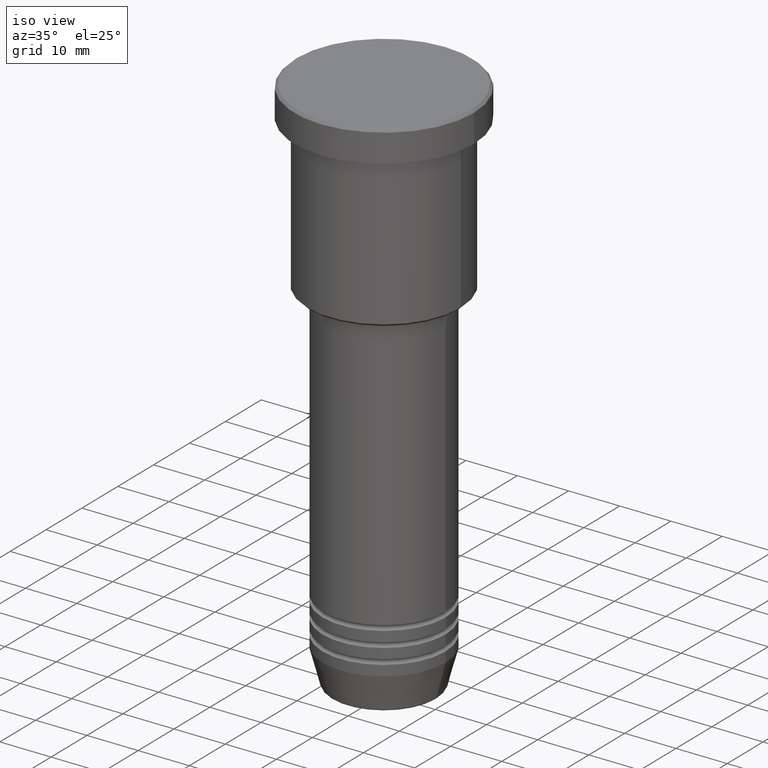
[diagram: clean part render]
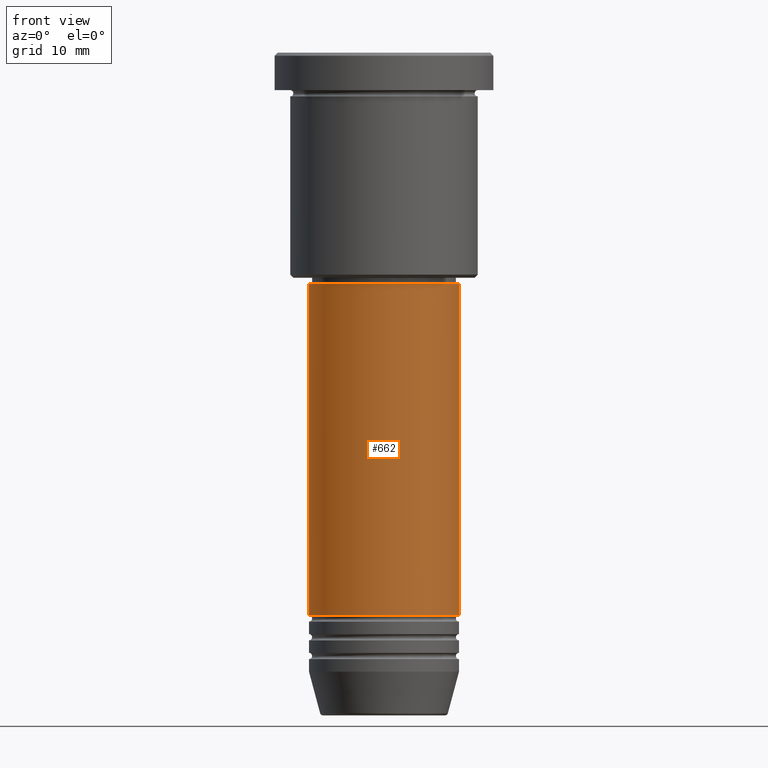
[diagram: tour spotlight — one face highlighted and labeled with its STEP entity id]
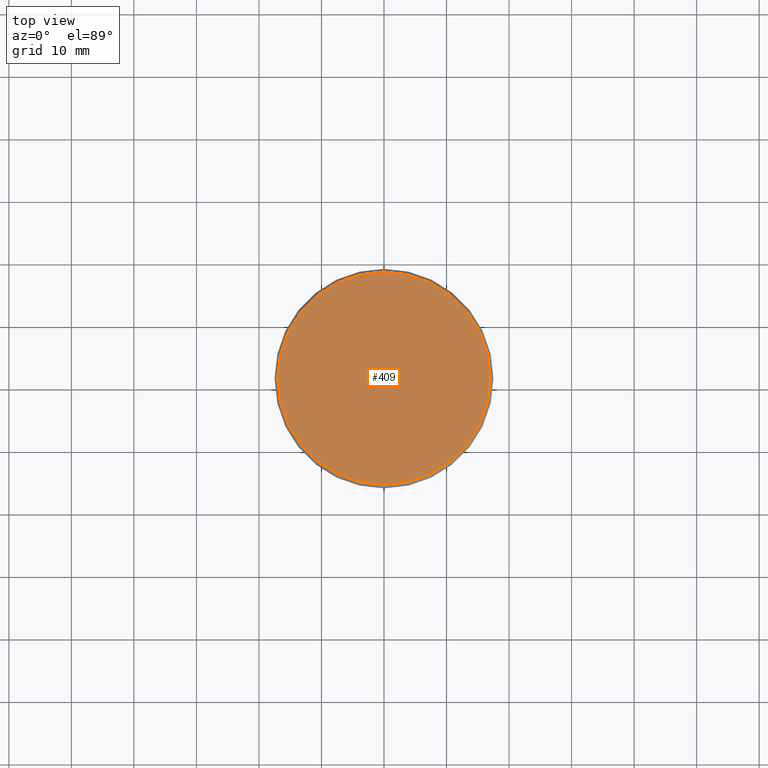
[diagram: tour spotlight — one face highlighted and labeled with its STEP entity id]
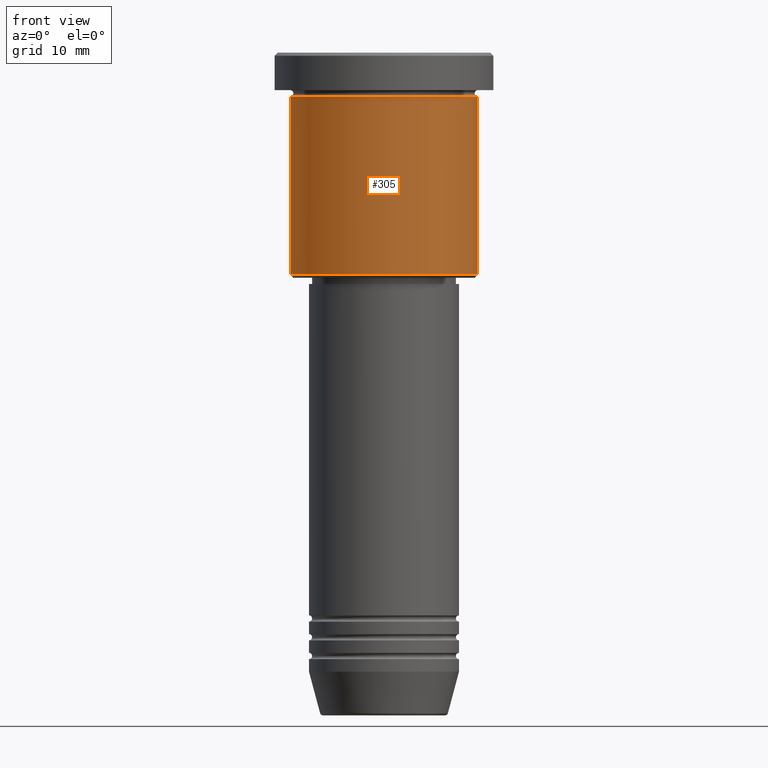
[diagram: tour spotlight — one face highlighted and labeled with its STEP entity id]
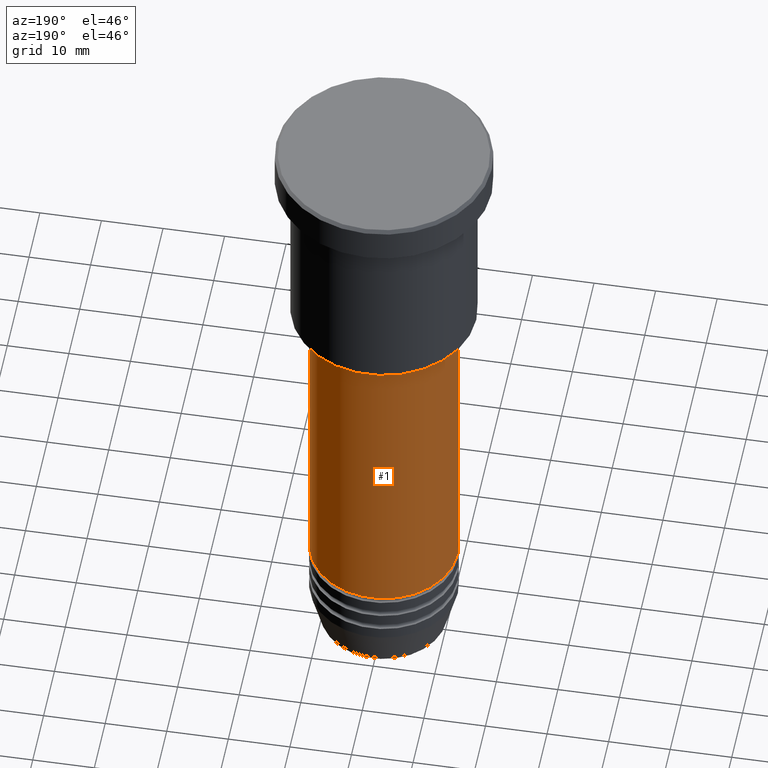
[diagram: tour spotlight — one face highlighted and labeled with its STEP entity id]
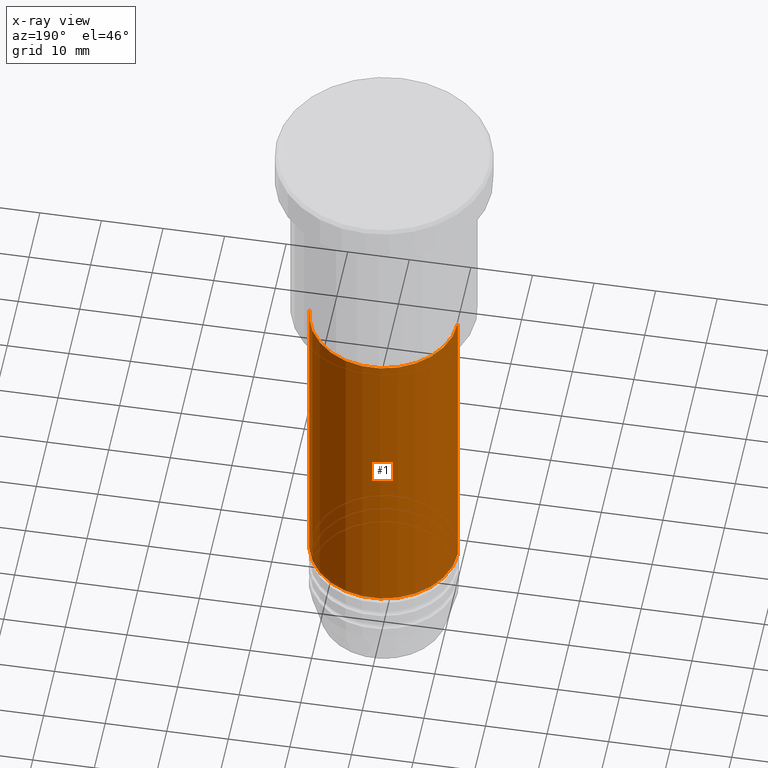
[diagram: x-ray of the same camera — body ghosted, this tour face saturated]
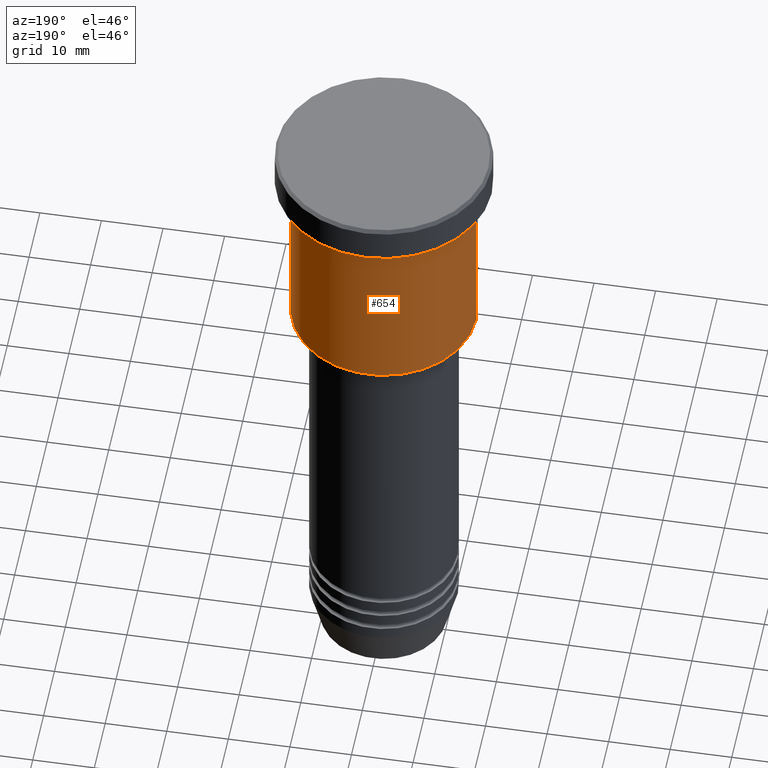
[diagram: tour spotlight — one face highlighted and labeled with its STEP entity id]
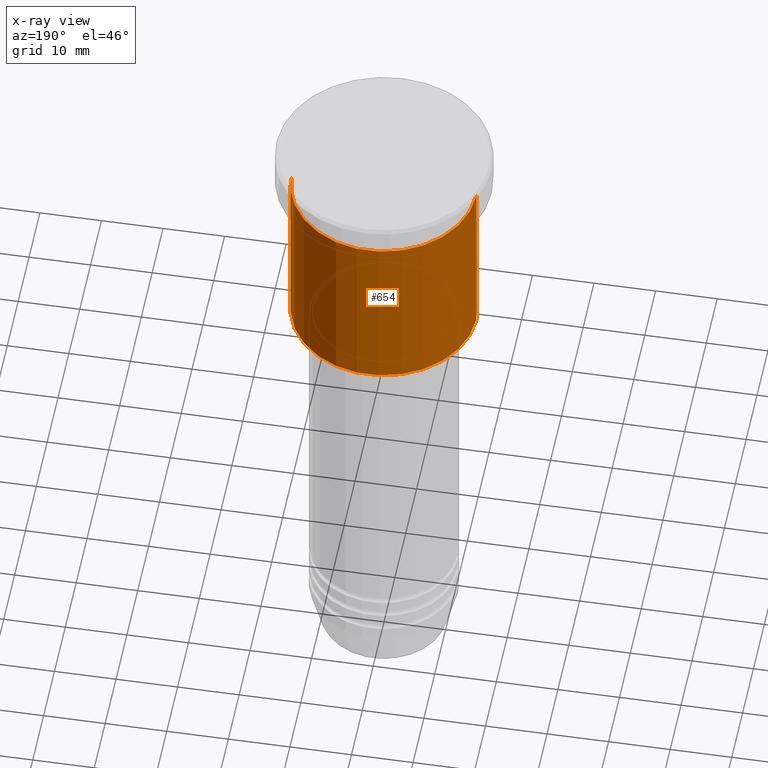
[diagram: x-ray of the same camera — body ghosted, this tour face saturated]
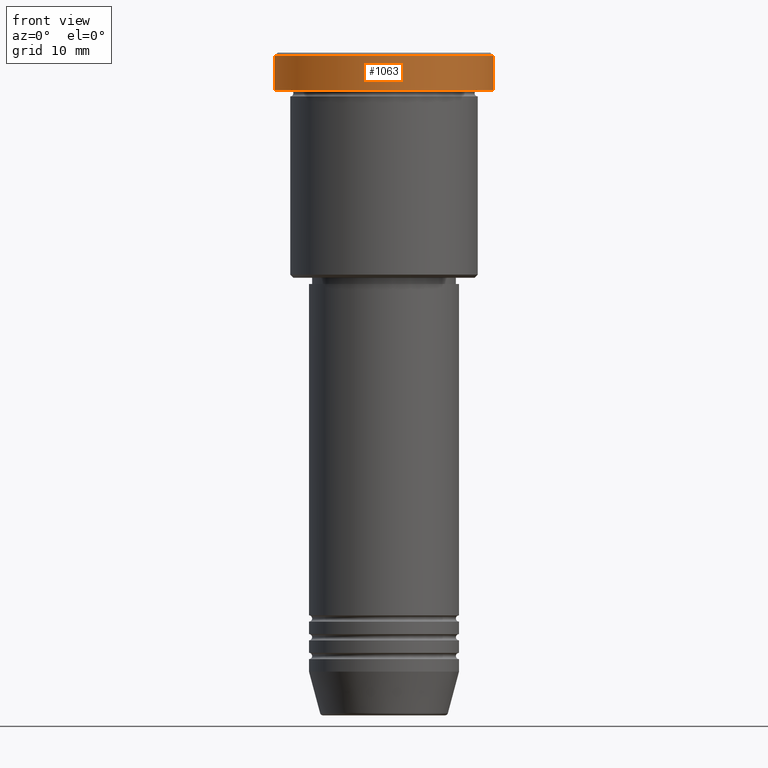
[diagram: tour spotlight — one face highlighted and labeled with its STEP entity id]
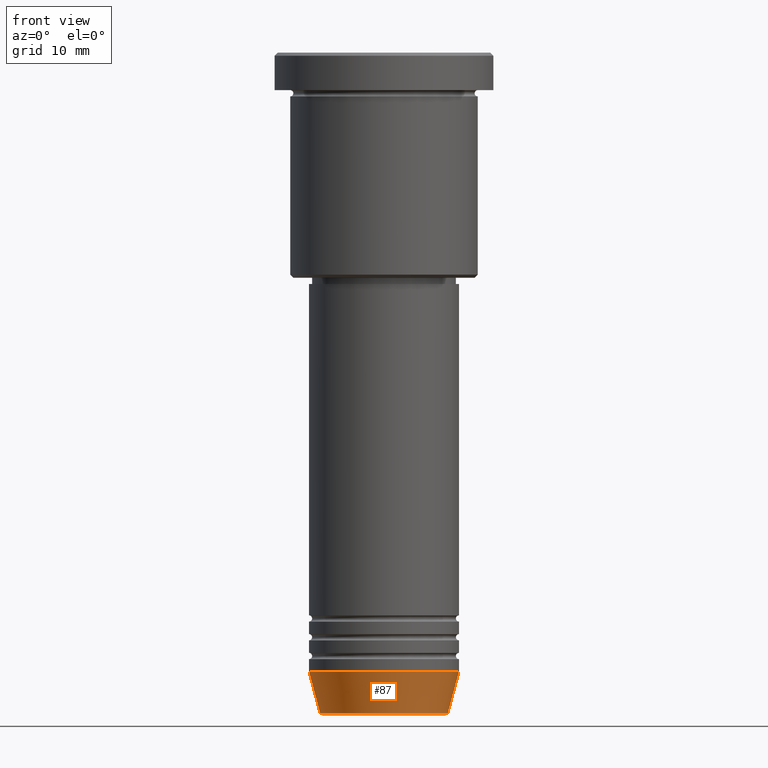
[diagram: tour spotlight — one face highlighted and labeled with its STEP entity id]
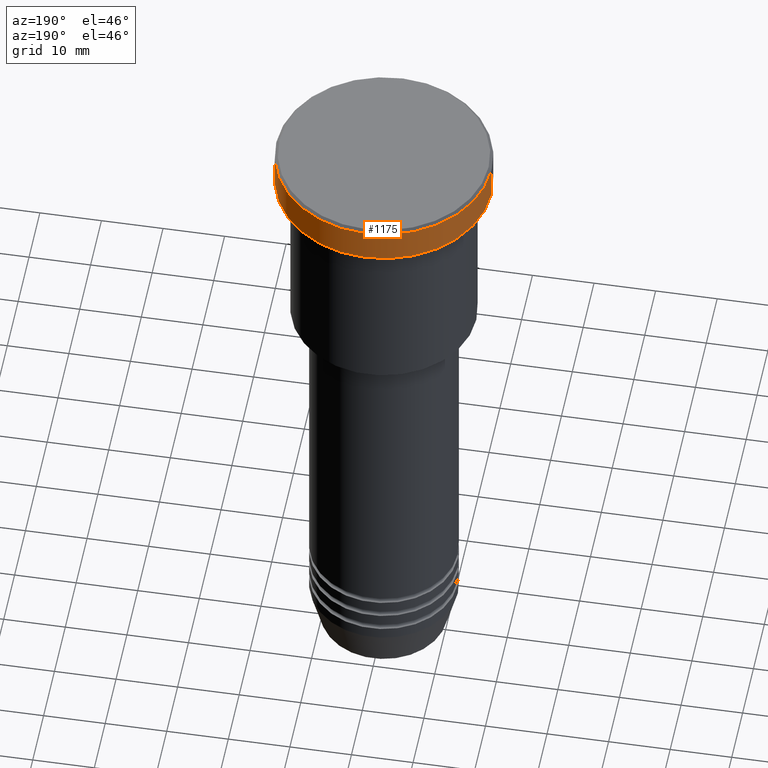
[diagram: tour spotlight — one face highlighted and labeled with its STEP entity id]
A machine part: a face-by-face anatomy tour. The part has 43 B-rep faces; the first image is the clean iso view, then the 8 largest visible faces are spotlighted one at a time (largest first), each with its STEP entity span.

Face 1 — front view, entity #662. In plain terms, the highlighted cylindrical surface (partial cylindrical patch) has radius 12 mm, axis along (-0, -0, 1).
Definition (entity closure, byte-faithful):
#74 = VECTOR ( 'NONE', #275, 1000.000000000000000 ) ;
#88 = DIRECTION ( 'NONE',  ( 1.000000000000000000, 0.000000000000000000, 0.000000000000000000 ) ) ;
#106 = CYLINDRICAL_SURFACE ( 'NONE', #253, 12.00000000000000000 ) ;
#139 = AXIS2_PLACEMENT_3D ( 'NONE', #683, #1139, #651 ) ;
#234 = VERTEX_POINT ( 'NONE', #669 ) ;
#237 = AXIS2_PLACEMENT_3D ( 'NONE', #742, #645, #88 ) ;
#253 = AXIS2_PLACEMENT_3D ( 'NONE', #739, #1104, #454 ) ;
#275 = DIRECTION ( 'NONE',  ( -0.000000000000000000, -0.000000000000000000, 1.000000000000000000 ) ) ;
#334 = CARTESIAN_POINT ( 'NONE',  ( 12.00000000000000000, 0.000000000000000000, 0.000000000000000000 ) ) ;
#342 = EDGE_CURVE ( 'NONE', #676, #744, #1149, .T. ) ;
#347 = CIRCLE ( 'NONE', #139, 12.00000000000000000 ) ;
#369 = CARTESIAN_POINT ( 'NONE',  ( 12.00000000000000000, 0.000000000000000000, -37.00000000000000000 ) ) ;
#371 = ORIENTED_EDGE ( 'NONE', *, *, #930, .F. ) ;
#381 = ORIENTED_EDGE ( 'NONE', *, *, #342, .T. ) ;
#401 = EDGE_LOOP ( 'NONE', ( #540, #623, #381, #371 ) ) ;
#454 = DIRECTION ( 'NONE',  ( 1.000000000000000000, 0.000000000000000000, 0.000000000000000000 ) ) ;
#490 = EDGE_CURVE ( 'NONE', #663, #234, #1083, .T. ) ;
#540 = ORIENTED_EDGE ( 'NONE', *, *, #490, .F. ) ;
#623 = ORIENTED_EDGE ( 'NONE', *, *, #749, .T. ) ;
#645 = DIRECTION ( 'NONE',  ( -0.000000000000000000, -0.000000000000000000, 1.000000000000000000 ) ) ;
#651 = DIRECTION ( 'NONE',  ( 1.000000000000000000, 0.000000000000000000, 0.000000000000000000 ) ) ;
#652 = FACE_OUTER_BOUND ( 'NONE', #401, .T. ) ;
#662 = ADVANCED_FACE ( 'NONE', ( #652 ), #106, .T. ) ;
#663 = VERTEX_POINT ( 'NONE', #847 ) ;
#669 = CARTESIAN_POINT ( 'NONE',  ( -12.00000000000000000, 1.469576158976823947E-15, -37.00000000000000000 ) ) ;
#676 = VERTEX_POINT ( 'NONE', #843 ) ;
#683 = CARTESIAN_POINT ( 'NONE',  ( 0.000000000000000000, 0.000000000000000000, -37.00000000000000000 ) ) ;
#700 = DIRECTION ( 'NONE',  ( -0.000000000000000000, -0.000000000000000000, 1.000000000000000000 ) ) ;
#739 = CARTESIAN_POINT ( 'NONE',  ( 0.000000000000000000, 0.000000000000000000, 0.000000000000000000 ) ) ;
#742 = CARTESIAN_POINT ( 'NONE',  ( 0.000000000000000000, 0.000000000000000000, -89.99999999999997158 ) ) ;
#744 = VERTEX_POINT ( 'NONE', #369 ) ;
#749 = EDGE_CURVE ( 'NONE', #663, #676, #1166, .T. ) ;
#843 = CARTESIAN_POINT ( 'NONE',  ( 12.00000000000000000, 0.000000000000000000, -89.99999999999997158 ) ) ;
#847 = CARTESIAN_POINT ( 'NONE',  ( -12.00000000000000000, 1.469576158976823947E-15, -89.99999999999997158 ) ) ;
#905 = CARTESIAN_POINT ( 'NONE',  ( -12.00000000000000000, 1.469576158976823947E-15, 0.000000000000000000 ) ) ;
#930 = EDGE_CURVE ( 'NONE', #234, #744, #347, .T. ) ;
#978 = VECTOR ( 'NONE', #700, 1000.000000000000000 ) ;
#1083 = LINE ( 'NONE', #905, #74 ) ;
#1104 = DIRECTION ( 'NONE',  ( -0.000000000000000000, -0.000000000000000000, 1.000000000000000000 ) ) ;
#1139 = DIRECTION ( 'NONE',  ( -0.000000000000000000, -0.000000000000000000, 1.000000000000000000 ) ) ;
#1149 = LINE ( 'NONE', #334, #978 ) ;
#1166 = CIRCLE ( 'NONE', #237, 12.00000000000000000 ) ;

Face 2 — top view, entity #409. In plain terms, the highlighted planar face has unit normal (0, -0, 1).
Definition (entity closure, byte-faithful):
#44 = DIRECTION ( 'NONE',  ( -0.000000000000000000, -0.000000000000000000, 1.000000000000000000 ) ) ;
#54 = AXIS2_PLACEMENT_3D ( 'NONE', #486, #680, #784 ) ;
#224 = EDGE_CURVE ( 'NONE', #1124, #302, #1162, .T. ) ;
#270 = FACE_OUTER_BOUND ( 'NONE', #817, .T. ) ;
#302 = VERTEX_POINT ( 'NONE', #705 ) ;
#313 = DIRECTION ( 'NONE',  ( 1.000000000000000000, 0.000000000000000000, 0.000000000000000000 ) ) ;
#409 = ADVANCED_FACE ( 'NONE', ( #270 ), #808, .T. ) ;
#472 = ORIENTED_EDGE ( 'NONE', *, *, #866, .T. ) ;
#486 = CARTESIAN_POINT ( 'NONE',  ( 0.000000000000000000, 0.000000000000000000, 0.000000000000000000 ) ) ;
#626 = DIRECTION ( 'NONE',  ( 0.000000000000000000, -0.000000000000000000, 1.000000000000000000 ) ) ;
#658 = CARTESIAN_POINT ( 'NONE',  ( -16.99999999999998579, 0.000000000000000000, 0.000000000000000000 ) ) ;
#670 = CIRCLE ( 'NONE', #832, 16.99999999999998579 ) ;
#680 = DIRECTION ( 'NONE',  ( -0.000000000000000000, -0.000000000000000000, 1.000000000000000000 ) ) ;
#705 = CARTESIAN_POINT ( 'NONE',  ( 16.99999999999998579, 2.112515728529183278E-15, 0.000000000000000000 ) ) ;
#784 = DIRECTION ( 'NONE',  ( 1.000000000000000000, 0.000000000000000000, 0.000000000000000000 ) ) ;
#808 = PLANE ( 'NONE',  #924 ) ;
#817 = EDGE_LOOP ( 'NONE', ( #878, #472 ) ) ;
#832 = AXIS2_PLACEMENT_3D ( 'NONE', #856, #44, #313 ) ;
#856 = CARTESIAN_POINT ( 'NONE',  ( 0.000000000000000000, 0.000000000000000000, 0.000000000000000000 ) ) ;
#866 = EDGE_CURVE ( 'NONE', #302, #1124, #670, .T. ) ;
#878 = ORIENTED_EDGE ( 'NONE', *, *, #224, .T. ) ;
#924 = AXIS2_PLACEMENT_3D ( 'NONE', #1165, #626, #1011 ) ;
#1011 = DIRECTION ( 'NONE',  ( 1.000000000000000000, 0.000000000000000000, 0.000000000000000000 ) ) ;
#1124 = VERTEX_POINT ( 'NONE', #658 ) ;
#1162 = CIRCLE ( 'NONE', #54, 16.99999999999998579 ) ;
#1165 = CARTESIAN_POINT ( 'NONE',  ( 0.000000000000000000, 0.000000000000000000, 0.000000000000000000 ) ) ;

Face 3 — front view, entity #305. In plain terms, the highlighted cylindrical surface (partial cylindrical patch) has radius 15 mm, axis along (-0, -0, 1).
Definition (entity closure, byte-faithful):
#35 = ORIENTED_EDGE ( 'NONE', *, *, #820, .F. ) ;
#47 = VERTEX_POINT ( 'NONE', #984 ) ;
#55 = VECTOR ( 'NONE', #677, 1000.000000000000000 ) ;
#120 = VECTOR ( 'NONE', #1006, 1000.000000000000000 ) ;
#134 = CARTESIAN_POINT ( 'NONE',  ( 15.00000000000000000, 0.000000000000000000, -6.999999999999995559 ) ) ;
#162 = CYLINDRICAL_SURFACE ( 'NONE', #251, 15.00000000000000000 ) ;
#191 = CARTESIAN_POINT ( 'NONE',  ( 0.000000000000000000, 0.000000000000000000, -6.999999999999995559 ) ) ;
#225 = VERTEX_POINT ( 'NONE', #1032 ) ;
#228 = DIRECTION ( 'NONE',  ( -1.000000000000000000, 0.000000000000000000, 0.000000000000000000 ) ) ;
#240 = CARTESIAN_POINT ( 'NONE',  ( 0.000000000000000000, 0.000000000000000000, -35.49999999999997868 ) ) ;
#251 = AXIS2_PLACEMENT_3D ( 'NONE', #975, #991, #517 ) ;
#259 = EDGE_CURVE ( 'NONE', #925, #225, #532, .T. ) ;
#266 = VERTEX_POINT ( 'NONE', #134 ) ;
#282 = CIRCLE ( 'NONE', #459, 15.00000000000000000 ) ;
#286 = CARTESIAN_POINT ( 'NONE',  ( 15.00000000000000000, 0.000000000000000000, 0.000000000000000000 ) ) ;
#305 = ADVANCED_FACE ( 'NONE', ( #521 ), #162, .T. ) ;
#308 = AXIS2_PLACEMENT_3D ( 'NONE', #240, #779, #228 ) ;
#414 = EDGE_LOOP ( 'NONE', ( #1073, #825, #718, #35 ) ) ;
#422 = EDGE_CURVE ( 'NONE', #925, #47, #859, .T. ) ;
#452 = LINE ( 'NONE', #286, #120 ) ;
#459 = AXIS2_PLACEMENT_3D ( 'NONE', #191, #460, #834 ) ;
#460 = DIRECTION ( 'NONE',  ( -0.000000000000000000, -0.000000000000000000, 1.000000000000000000 ) ) ;
#517 = DIRECTION ( 'NONE',  ( 1.000000000000000000, 0.000000000000000000, 0.000000000000000000 ) ) ;
#521 = FACE_OUTER_BOUND ( 'NONE', #414, .T. ) ;
#532 = CIRCLE ( 'NONE', #308, 15.00000000000000000 ) ;
#581 = CARTESIAN_POINT ( 'NONE',  ( -15.00000000000000000, 1.836970198721029589E-15, -35.49999999999997868 ) ) ;
#677 = DIRECTION ( 'NONE',  ( -0.000000000000000000, -0.000000000000000000, 1.000000000000000000 ) ) ;
#718 = ORIENTED_EDGE ( 'NONE', *, *, #818, .T. ) ;
#779 = DIRECTION ( 'NONE',  ( -0.000000000000000000, -0.000000000000000000, 1.000000000000000000 ) ) ;
#818 = EDGE_CURVE ( 'NONE', #225, #266, #452, .T. ) ;
#820 = EDGE_CURVE ( 'NONE', #47, #266, #282, .T. ) ;
#825 = ORIENTED_EDGE ( 'NONE', *, *, #259, .T. ) ;
#834 = DIRECTION ( 'NONE',  ( 1.000000000000000000, 0.000000000000000000, 0.000000000000000000 ) ) ;
#859 = LINE ( 'NONE', #865, #55 ) ;
#865 = CARTESIAN_POINT ( 'NONE',  ( -15.00000000000000000, 1.836970198721029589E-15, 0.000000000000000000 ) ) ;
#925 = VERTEX_POINT ( 'NONE', #581 ) ;
#975 = CARTESIAN_POINT ( 'NONE',  ( 0.000000000000000000, 0.000000000000000000, 0.000000000000000000 ) ) ;
#984 = CARTESIAN_POINT ( 'NONE',  ( -15.00000000000000000, 1.836970198721029589E-15, -6.999999999999995559 ) ) ;
#991 = DIRECTION ( 'NONE',  ( -0.000000000000000000, -0.000000000000000000, 1.000000000000000000 ) ) ;
#1006 = DIRECTION ( 'NONE',  ( -0.000000000000000000, -0.000000000000000000, 1.000000000000000000 ) ) ;
#1032 = CARTESIAN_POINT ( 'NONE',  ( 15.00000000000000000, 0.000000000000000000, -35.49999999999997868 ) ) ;
#1073 = ORIENTED_EDGE ( 'NONE', *, *, #422, .F. ) ;

Face 4 — auxiliary view, entity #1. An x-ray twin of the same camera follows (body ghosted, this face saturated) — the face is partly hidden behind the body. In plain terms, the highlighted cylindrical surface (partial cylindrical patch) has radius 12 mm, axis along (-0, -0, 1).
Definition (entity closure, byte-faithful):
#1 = ADVANCED_FACE ( 'NONE', ( #520 ), #262, .T. ) ;
#43 = ORIENTED_EDGE ( 'NONE', *, *, #342, .F. ) ;
#67 = ORIENTED_EDGE ( 'NONE', *, *, #490, .T. ) ;
#74 = VECTOR ( 'NONE', #275, 1000.000000000000000 ) ;
#91 = ORIENTED_EDGE ( 'NONE', *, *, #470, .T. ) ;
#174 = DIRECTION ( 'NONE',  ( 1.000000000000000000, 0.000000000000000000, 0.000000000000000000 ) ) ;
#217 = AXIS2_PLACEMENT_3D ( 'NONE', #265, #529, #539 ) ;
#234 = VERTEX_POINT ( 'NONE', #669 ) ;
#255 = DIRECTION ( 'NONE',  ( 1.000000000000000000, 0.000000000000000000, 0.000000000000000000 ) ) ;
#262 = CYLINDRICAL_SURFACE ( 'NONE', #963, 12.00000000000000000 ) ;
#265 = CARTESIAN_POINT ( 'NONE',  ( 0.000000000000000000, 0.000000000000000000, -37.00000000000000000 ) ) ;
#275 = DIRECTION ( 'NONE',  ( -0.000000000000000000, -0.000000000000000000, 1.000000000000000000 ) ) ;
#279 = AXIS2_PLACEMENT_3D ( 'NONE', #721, #805, #174 ) ;
#334 = CARTESIAN_POINT ( 'NONE',  ( 12.00000000000000000, 0.000000000000000000, 0.000000000000000000 ) ) ;
#342 = EDGE_CURVE ( 'NONE', #676, #744, #1149, .T. ) ;
#364 = CIRCLE ( 'NONE', #217, 12.00000000000000000 ) ;
#369 = CARTESIAN_POINT ( 'NONE',  ( 12.00000000000000000, 0.000000000000000000, -37.00000000000000000 ) ) ;
#470 = EDGE_CURVE ( 'NONE', #676, #663, #509, .T. ) ;
#476 = EDGE_CURVE ( 'NONE', #744, #234, #364, .T. ) ;
#490 = EDGE_CURVE ( 'NONE', #663, #234, #1083, .T. ) ;
#509 = CIRCLE ( 'NONE', #279, 12.00000000000000000 ) ;
#520 = FACE_OUTER_BOUND ( 'NONE', #1096, .T. ) ;
#529 = DIRECTION ( 'NONE',  ( -0.000000000000000000, -0.000000000000000000, 1.000000000000000000 ) ) ;
#539 = DIRECTION ( 'NONE',  ( 1.000000000000000000, 0.000000000000000000, 0.000000000000000000 ) ) ;
#663 = VERTEX_POINT ( 'NONE', #847 ) ;
#669 = CARTESIAN_POINT ( 'NONE',  ( -12.00000000000000000, 1.469576158976823947E-15, -37.00000000000000000 ) ) ;
#676 = VERTEX_POINT ( 'NONE', #843 ) ;
#700 = DIRECTION ( 'NONE',  ( -0.000000000000000000, -0.000000000000000000, 1.000000000000000000 ) ) ;
#721 = CARTESIAN_POINT ( 'NONE',  ( 0.000000000000000000, 0.000000000000000000, -89.99999999999997158 ) ) ;
#744 = VERTEX_POINT ( 'NONE', #369 ) ;
#763 = ORIENTED_EDGE ( 'NONE', *, *, #476, .F. ) ;
#805 = DIRECTION ( 'NONE',  ( -0.000000000000000000, -0.000000000000000000, 1.000000000000000000 ) ) ;
#843 = CARTESIAN_POINT ( 'NONE',  ( 12.00000000000000000, 0.000000000000000000, -89.99999999999997158 ) ) ;
#847 = CARTESIAN_POINT ( 'NONE',  ( -12.00000000000000000, 1.469576158976823947E-15, -89.99999999999997158 ) ) ;
#905 = CARTESIAN_POINT ( 'NONE',  ( -12.00000000000000000, 1.469576158976823947E-15, 0.000000000000000000 ) ) ;
#963 = AXIS2_PLACEMENT_3D ( 'NONE', #1164, #979, #255 ) ;
#978 = VECTOR ( 'NONE', #700, 1000.000000000000000 ) ;
#979 = DIRECTION ( 'NONE',  ( -0.000000000000000000, -0.000000000000000000, 1.000000000000000000 ) ) ;
#1083 = LINE ( 'NONE', #905, #74 ) ;
#1096 = EDGE_LOOP ( 'NONE', ( #91, #67, #763, #43 ) ) ;
#1149 = LINE ( 'NONE', #334, #978 ) ;
#1164 = CARTESIAN_POINT ( 'NONE',  ( 0.000000000000000000, 0.000000000000000000, 0.000000000000000000 ) ) ;

Face 5 — auxiliary view, entity #654. An x-ray twin of the same camera follows (body ghosted, this face saturated) — the face is partly hidden behind the body. In plain terms, the highlighted cylindrical surface (partial cylindrical patch) has radius 15 mm, axis along (-0, -0, 1).
Definition (entity closure, byte-faithful):
#15 = DIRECTION ( 'NONE',  ( 1.000000000000000000, 0.000000000000000000, 0.000000000000000000 ) ) ;
#47 = VERTEX_POINT ( 'NONE', #984 ) ;
#55 = VECTOR ( 'NONE', #677, 1000.000000000000000 ) ;
#120 = VECTOR ( 'NONE', #1006, 1000.000000000000000 ) ;
#134 = CARTESIAN_POINT ( 'NONE',  ( 15.00000000000000000, 0.000000000000000000, -6.999999999999995559 ) ) ;
#169 = FACE_OUTER_BOUND ( 'NONE', #1000, .T. ) ;
#184 = ORIENTED_EDGE ( 'NONE', *, *, #1008, .F. ) ;
#225 = VERTEX_POINT ( 'NONE', #1032 ) ;
#266 = VERTEX_POINT ( 'NONE', #134 ) ;
#286 = CARTESIAN_POINT ( 'NONE',  ( 15.00000000000000000, 0.000000000000000000, 0.000000000000000000 ) ) ;
#287 = CARTESIAN_POINT ( 'NONE',  ( 0.000000000000000000, 0.000000000000000000, -35.49999999999997868 ) ) ;
#296 = CIRCLE ( 'NONE', #754, 15.00000000000000000 ) ;
#377 = DIRECTION ( 'NONE',  ( -1.000000000000000000, 0.000000000000000000, 0.000000000000000000 ) ) ;
#422 = EDGE_CURVE ( 'NONE', #925, #47, #859, .T. ) ;
#452 = LINE ( 'NONE', #286, #120 ) ;
#475 = DIRECTION ( 'NONE',  ( -0.000000000000000000, -0.000000000000000000, 1.000000000000000000 ) ) ;
#499 = AXIS2_PLACEMENT_3D ( 'NONE', #1168, #932, #1091 ) ;
#522 = CYLINDRICAL_SURFACE ( 'NONE', #499, 15.00000000000000000 ) ;
#581 = CARTESIAN_POINT ( 'NONE',  ( -15.00000000000000000, 1.836970198721029589E-15, -35.49999999999997868 ) ) ;
#654 = ADVANCED_FACE ( 'NONE', ( #169 ), #522, .T. ) ;
#677 = DIRECTION ( 'NONE',  ( -0.000000000000000000, -0.000000000000000000, 1.000000000000000000 ) ) ;
#691 = EDGE_CURVE ( 'NONE', #225, #925, #296, .T. ) ;
#754 = AXIS2_PLACEMENT_3D ( 'NONE', #287, #941, #377 ) ;
#818 = EDGE_CURVE ( 'NONE', #225, #266, #452, .T. ) ;
#859 = LINE ( 'NONE', #865, #55 ) ;
#865 = CARTESIAN_POINT ( 'NONE',  ( -15.00000000000000000, 1.836970198721029589E-15, 0.000000000000000000 ) ) ;
#925 = VERTEX_POINT ( 'NONE', #581 ) ;
#932 = DIRECTION ( 'NONE',  ( -0.000000000000000000, -0.000000000000000000, 1.000000000000000000 ) ) ;
#935 = ORIENTED_EDGE ( 'NONE', *, *, #818, .F. ) ;
#940 = CARTESIAN_POINT ( 'NONE',  ( 0.000000000000000000, 0.000000000000000000, -6.999999999999995559 ) ) ;
#941 = DIRECTION ( 'NONE',  ( -0.000000000000000000, -0.000000000000000000, 1.000000000000000000 ) ) ;
#956 = ORIENTED_EDGE ( 'NONE', *, *, #691, .T. ) ;
#984 = CARTESIAN_POINT ( 'NONE',  ( -15.00000000000000000, 1.836970198721029589E-15, -6.999999999999995559 ) ) ;
#1000 = EDGE_LOOP ( 'NONE', ( #956, #1022, #184, #935 ) ) ;
#1006 = DIRECTION ( 'NONE',  ( -0.000000000000000000, -0.000000000000000000, 1.000000000000000000 ) ) ;
#1008 = EDGE_CURVE ( 'NONE', #266, #47, #1132, .T. ) ;
#1022 = ORIENTED_EDGE ( 'NONE', *, *, #422, .T. ) ;
#1032 = CARTESIAN_POINT ( 'NONE',  ( 15.00000000000000000, 0.000000000000000000, -35.49999999999997868 ) ) ;
#1091 = DIRECTION ( 'NONE',  ( 1.000000000000000000, 0.000000000000000000, 0.000000000000000000 ) ) ;
#1095 = AXIS2_PLACEMENT_3D ( 'NONE', #940, #475, #15 ) ;
#1132 = CIRCLE ( 'NONE', #1095, 15.00000000000000000 ) ;
#1168 = CARTESIAN_POINT ( 'NONE',  ( 0.000000000000000000, 0.000000000000000000, 0.000000000000000000 ) ) ;

Face 6 — front view, entity #1063. In plain terms, the highlighted cylindrical surface (partial cylindrical patch) has radius 17.5 mm, axis along (-0, -0, 1).
Definition (entity closure, byte-faithful):
#14 = CARTESIAN_POINT ( 'NONE',  ( -17.50000000000000000, 2.143131898507868248E-15, -0.5000000000000280886 ) ) ;
#62 = DIRECTION ( 'NONE',  ( 1.000000000000000000, 0.000000000000000000, 0.000000000000000000 ) ) ;
#68 = EDGE_CURVE ( 'NONE', #250, #110, #496, .T. ) ;
#73 = CIRCLE ( 'NONE', #135, 17.50000000000000000 ) ;
#85 = EDGE_CURVE ( 'NONE', #723, #641, #73, .T. ) ;
#110 = VERTEX_POINT ( 'NONE', #14 ) ;
#125 = CARTESIAN_POINT ( 'NONE',  ( -17.50000000000000000, 2.143131898507868248E-15, 0.000000000000000000 ) ) ;
#135 = AXIS2_PLACEMENT_3D ( 'NONE', #1080, #730, #892 ) ;
#157 = VECTOR ( 'NONE', #719, 1000.000000000000000 ) ;
#176 = VECTOR ( 'NONE', #584, 1000.000000000000000 ) ;
#183 = CARTESIAN_POINT ( 'NONE',  ( 17.50000000000000000, 0.000000000000000000, -5.999999999999995559 ) ) ;
#194 = ORIENTED_EDGE ( 'NONE', *, *, #68, .T. ) ;
#216 = EDGE_CURVE ( 'NONE', #723, #110, #661, .T. ) ;
#250 = VERTEX_POINT ( 'NONE', #868 ) ;
#263 = CARTESIAN_POINT ( 'NONE',  ( 17.50000000000000000, 0.000000000000000000, 0.000000000000000000 ) ) ;
#289 = EDGE_CURVE ( 'NONE', #641, #250, #996, .T. ) ;
#299 = ORIENTED_EDGE ( 'NONE', *, *, #216, .F. ) ;
#306 = ORIENTED_EDGE ( 'NONE', *, *, #85, .T. ) ;
#354 = CARTESIAN_POINT ( 'NONE',  ( 0.000000000000000000, 0.000000000000000000, -0.5000000000000280886 ) ) ;
#359 = DIRECTION ( 'NONE',  ( 1.000000000000000000, 0.000000000000000000, 0.000000000000000000 ) ) ;
#447 = DIRECTION ( 'NONE',  ( 0.000000000000000000, 0.000000000000000000, -1.000000000000000000 ) ) ;
#496 = CIRCLE ( 'NONE', #774, 17.50000000000000000 ) ;
#514 = DIRECTION ( 'NONE',  ( -0.000000000000000000, -0.000000000000000000, 1.000000000000000000 ) ) ;
#533 = CYLINDRICAL_SURFACE ( 'NONE', #853, 17.50000000000000000 ) ;
#584 = DIRECTION ( 'NONE',  ( -0.000000000000000000, -0.000000000000000000, 1.000000000000000000 ) ) ;
#602 = ORIENTED_EDGE ( 'NONE', *, *, #289, .T. ) ;
#641 = VERTEX_POINT ( 'NONE', #183 ) ;
#661 = LINE ( 'NONE', #125, #176 ) ;
#665 = EDGE_LOOP ( 'NONE', ( #299, #306, #602, #194 ) ) ;
#703 = FACE_OUTER_BOUND ( 'NONE', #665, .T. ) ;
#719 = DIRECTION ( 'NONE',  ( -0.000000000000000000, -0.000000000000000000, 1.000000000000000000 ) ) ;
#723 = VERTEX_POINT ( 'NONE', #922 ) ;
#730 = DIRECTION ( 'NONE',  ( -0.000000000000000000, -0.000000000000000000, 1.000000000000000000 ) ) ;
#774 = AXIS2_PLACEMENT_3D ( 'NONE', #354, #447, #359 ) ;
#853 = AXIS2_PLACEMENT_3D ( 'NONE', #974, #514, #62 ) ;
#868 = CARTESIAN_POINT ( 'NONE',  ( 17.50000000000000000, 0.000000000000000000, -0.5000000000000280886 ) ) ;
#892 = DIRECTION ( 'NONE',  ( 1.000000000000000000, 0.000000000000000000, 0.000000000000000000 ) ) ;
#922 = CARTESIAN_POINT ( 'NONE',  ( -17.50000000000000000, 2.143131898507868248E-15, -5.999999999999995559 ) ) ;
#974 = CARTESIAN_POINT ( 'NONE',  ( 0.000000000000000000, 0.000000000000000000, 0.000000000000000000 ) ) ;
#996 = LINE ( 'NONE', #263, #157 ) ;
#1063 = ADVANCED_FACE ( 'NONE', ( #703 ), #533, .T. ) ;
#1080 = CARTESIAN_POINT ( 'NONE',  ( 0.000000000000000000, 0.000000000000000000, -5.999999999999995559 ) ) ;

Face 7 — front view, entity #87. In plain terms, the highlighted conical surface has half-angle 15 deg.
Definition (entity closure, byte-faithful):
#64 = DIRECTION ( 'NONE',  ( 1.000000000000000000, 0.000000000000000000, 0.000000000000000000 ) ) ;
#83 = CARTESIAN_POINT ( 'NONE',  ( 0.000000000000000000, 0.000000000000000000, -99.00000000000000000 ) ) ;
#84 = EDGE_LOOP ( 'NONE', ( #986, #288, #379, #562 ) ) ;
#87 = ADVANCED_FACE ( 'NONE', ( #633 ), #455, .T. ) ;
#105 = EDGE_CURVE ( 'NONE', #1161, #637, #750, .T. ) ;
#143 = CARTESIAN_POINT ( 'NONE',  ( -12.00000000000000000, 1.469576158976823947E-15, -99.00000000000000000 ) ) ;
#168 = CARTESIAN_POINT ( 'NONE',  ( 12.00000000000000000, 0.000000000000000000, -99.00000000000000000 ) ) ;
#185 = DIRECTION ( 'NONE',  ( -0.000000000000000000, -0.000000000000000000, 1.000000000000000000 ) ) ;
#200 = CIRCLE ( 'NONE', #1067, 12.00000000000000000 ) ;
#256 = DIRECTION ( 'NONE',  ( 0.2588190451025213501, 0.000000000000000000, 0.9659258262890680902 ) ) ;
#288 = ORIENTED_EDGE ( 'NONE', *, *, #105, .T. ) ;
#295 = VECTOR ( 'NONE', #256, 1000.000000000000000 ) ;
#333 = DIRECTION ( 'NONE',  ( -0.000000000000000000, -0.000000000000000000, 1.000000000000000000 ) ) ;
#348 = LINE ( 'NONE', #168, #295 ) ;
#362 = DIRECTION ( 'NONE',  ( -0.000000000000000000, -0.000000000000000000, 1.000000000000000000 ) ) ;
#373 = EDGE_CURVE ( 'NONE', #637, #939, #348, .T. ) ;
#379 = ORIENTED_EDGE ( 'NONE', *, *, #373, .T. ) ;
#400 = LINE ( 'NONE', #143, #1146 ) ;
#416 = DIRECTION ( 'NONE',  ( -0.2588190451025213501, 3.169619151431772337E-17, 0.9659258262890680902 ) ) ;
#453 = CARTESIAN_POINT ( 'NONE',  ( 0.000000000000000000, 0.000000000000000000, -105.6294095225512564 ) ) ;
#455 = CONICAL_SURFACE ( 'NONE', #923, 12.00000000000000000, 0.2617993877991500740 ) ;
#464 = CARTESIAN_POINT ( 'NONE',  ( 12.00000000000000000, 0.000000000000000000, -99.00000000000000000 ) ) ;
#495 = EDGE_CURVE ( 'NONE', #752, #939, #200, .T. ) ;
#542 = DIRECTION ( 'NONE',  ( 1.000000000000000000, 0.000000000000000000, 0.000000000000000000 ) ) ;
#545 = EDGE_CURVE ( 'NONE', #1161, #752, #400, .T. ) ;
#562 = ORIENTED_EDGE ( 'NONE', *, *, #495, .F. ) ;
#633 = FACE_OUTER_BOUND ( 'NONE', #84, .T. ) ;
#637 = VERTEX_POINT ( 'NONE', #811 ) ;
#675 = CARTESIAN_POINT ( 'NONE',  ( -10.22365507213719305, 1.360806402472382744E-15, -105.6294095225512564 ) ) ;
#733 = DIRECTION ( 'NONE',  ( 1.000000000000000000, 0.000000000000000000, 0.000000000000000000 ) ) ;
#741 = CARTESIAN_POINT ( 'NONE',  ( -12.00000000000000000, 1.469576158976823947E-15, -99.00000000000000000 ) ) ;
#750 = CIRCLE ( 'NONE', #902, 10.22365507213719305 ) ;
#752 = VERTEX_POINT ( 'NONE', #741 ) ;
#811 = CARTESIAN_POINT ( 'NONE',  ( 10.22365507213719305, 0.000000000000000000, -105.6294095225512564 ) ) ;
#902 = AXIS2_PLACEMENT_3D ( 'NONE', #453, #333, #64 ) ;
#923 = AXIS2_PLACEMENT_3D ( 'NONE', #1001, #185, #542 ) ;
#939 = VERTEX_POINT ( 'NONE', #464 ) ;
#986 = ORIENTED_EDGE ( 'NONE', *, *, #545, .F. ) ;
#1001 = CARTESIAN_POINT ( 'NONE',  ( 0.000000000000000000, 0.000000000000000000, -99.00000000000000000 ) ) ;
#1067 = AXIS2_PLACEMENT_3D ( 'NONE', #83, #362, #733 ) ;
#1146 = VECTOR ( 'NONE', #416, 1000.000000000000000 ) ;
#1161 = VERTEX_POINT ( 'NONE', #675 ) ;

Face 8 — auxiliary view, entity #1175. In plain terms, the highlighted cylindrical surface (partial cylindrical patch) has radius 17.5 mm, axis along (-0, -0, 1).
Definition (entity closure, byte-faithful):
#14 = CARTESIAN_POINT ( 'NONE',  ( -17.50000000000000000, 2.143131898507868248E-15, -0.5000000000000280886 ) ) ;
#110 = VERTEX_POINT ( 'NONE', #14 ) ;
#125 = CARTESIAN_POINT ( 'NONE',  ( -17.50000000000000000, 2.143131898507868248E-15, 0.000000000000000000 ) ) ;
#157 = VECTOR ( 'NONE', #719, 1000.000000000000000 ) ;
#176 = VECTOR ( 'NONE', #584, 1000.000000000000000 ) ;
#183 = CARTESIAN_POINT ( 'NONE',  ( 17.50000000000000000, 0.000000000000000000, -5.999999999999995559 ) ) ;
#210 = DIRECTION ( 'NONE',  ( 0.000000000000000000, 0.000000000000000000, -1.000000000000000000 ) ) ;
#216 = EDGE_CURVE ( 'NONE', #723, #110, #661, .T. ) ;
#250 = VERTEX_POINT ( 'NONE', #868 ) ;
#263 = CARTESIAN_POINT ( 'NONE',  ( 17.50000000000000000, 0.000000000000000000, 0.000000000000000000 ) ) ;
#285 = ORIENTED_EDGE ( 'NONE', *, *, #216, .T. ) ;
#289 = EDGE_CURVE ( 'NONE', #641, #250, #996, .T. ) ;
#298 = DIRECTION ( 'NONE',  ( 1.000000000000000000, 0.000000000000000000, 0.000000000000000000 ) ) ;
#390 = EDGE_CURVE ( 'NONE', #641, #723, #439, .T. ) ;
#439 = CIRCLE ( 'NONE', #887, 17.50000000000000000 ) ;
#467 = CYLINDRICAL_SURFACE ( 'NONE', #1071, 17.50000000000000000 ) ;
#501 = ORIENTED_EDGE ( 'NONE', *, *, #390, .T. ) ;
#584 = DIRECTION ( 'NONE',  ( -0.000000000000000000, -0.000000000000000000, 1.000000000000000000 ) ) ;
#604 = EDGE_CURVE ( 'NONE', #110, #250, #715, .T. ) ;
#634 = DIRECTION ( 'NONE',  ( 1.000000000000000000, 0.000000000000000000, 0.000000000000000000 ) ) ;
#641 = VERTEX_POINT ( 'NONE', #183 ) ;
#661 = LINE ( 'NONE', #125, #176 ) ;
#715 = CIRCLE ( 'NONE', #776, 17.50000000000000000 ) ;
#719 = DIRECTION ( 'NONE',  ( -0.000000000000000000, -0.000000000000000000, 1.000000000000000000 ) ) ;
#723 = VERTEX_POINT ( 'NONE', #922 ) ;
#743 = DIRECTION ( 'NONE',  ( -0.000000000000000000, -0.000000000000000000, 1.000000000000000000 ) ) ;
#776 = AXIS2_PLACEMENT_3D ( 'NONE', #1025, #210, #634 ) ;
#799 = CARTESIAN_POINT ( 'NONE',  ( 0.000000000000000000, 0.000000000000000000, -5.999999999999995559 ) ) ;
#837 = EDGE_LOOP ( 'NONE', ( #501, #285, #962, #1148 ) ) ;
#838 = CARTESIAN_POINT ( 'NONE',  ( 0.000000000000000000, 0.000000000000000000, 0.000000000000000000 ) ) ;
#868 = CARTESIAN_POINT ( 'NONE',  ( 17.50000000000000000, 0.000000000000000000, -0.5000000000000280886 ) ) ;
#887 = AXIS2_PLACEMENT_3D ( 'NONE', #799, #1153, #1159 ) ;
#922 = CARTESIAN_POINT ( 'NONE',  ( -17.50000000000000000, 2.143131898507868248E-15, -5.999999999999995559 ) ) ;
#945 = FACE_OUTER_BOUND ( 'NONE', #837, .T. ) ;
#962 = ORIENTED_EDGE ( 'NONE', *, *, #604, .T. ) ;
#996 = LINE ( 'NONE', #263, #157 ) ;
#1025 = CARTESIAN_POINT ( 'NONE',  ( 0.000000000000000000, 0.000000000000000000, -0.5000000000000280886 ) ) ;
#1071 = AXIS2_PLACEMENT_3D ( 'NONE', #838, #743, #298 ) ;
#1148 = ORIENTED_EDGE ( 'NONE', *, *, #289, .F. ) ;
#1153 = DIRECTION ( 'NONE',  ( -0.000000000000000000, -0.000000000000000000, 1.000000000000000000 ) ) ;
#1159 = DIRECTION ( 'NONE',  ( 1.000000000000000000, 0.000000000000000000, 0.000000000000000000 ) ) ;
#1175 = ADVANCED_FACE ( 'NONE', ( #945 ), #467, .T. ) ;